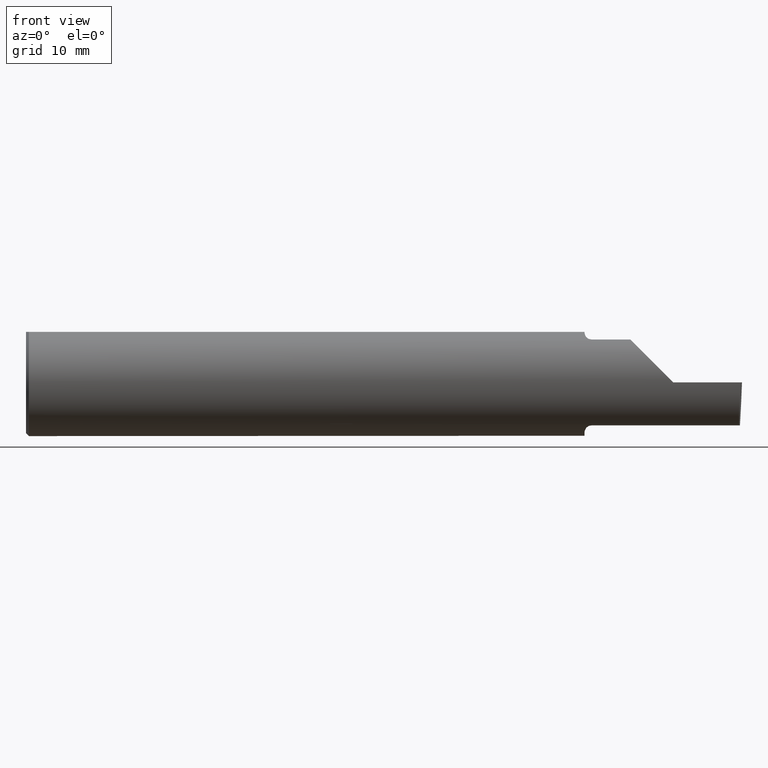
[diagram: clean part render]
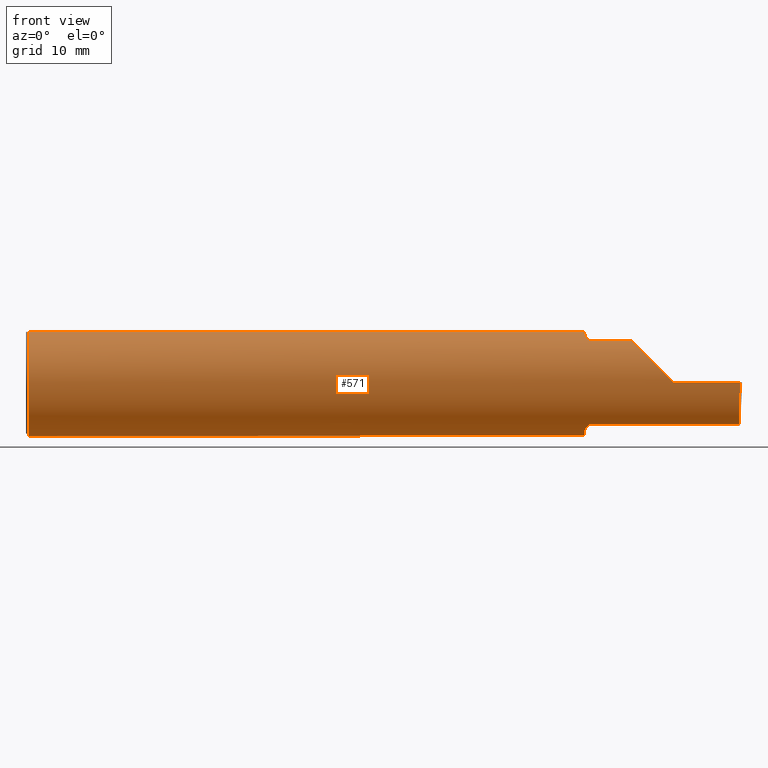
[diagram: same view with one face highlighted and labeled with its STEP entity id]
A machine part, front view. The second image highlights one B-rep face of the part: STEP entity #571.
In plain terms, the highlighted cylindrical surface (partial cylindrical patch) has radius 4.7587 mm, axis along (-1, -0, -0).
Its self-contained STEP definition (entity closure, byte-faithful):
#3 = DIRECTION ( 'NONE',  ( -1.000000000000000000, -0.000000000000000000, -0.000000000000000000 ) ) ;
#4 = AXIS2_PLACEMENT_3D ( 'NONE', #39, #424, #208 ) ;
#11 = CARTESIAN_POINT ( 'NONE',  ( 1.972161949849308593, -0.1172600179964061462, 0.1461167706989260351 ) ) ;
#12 = DIRECTION ( 'NONE',  ( 0.000000000000000000, 0.000000000000000000, 1.000000000000000000 ) ) ;
#19 = EDGE_CURVE ( 'NONE', #421, #273, #64, .T. ) ;
#20 = CARTESIAN_POINT ( 'NONE',  ( 2.150065971957465294, -0.1623470442677542591, 0.1099340280425336325 ) ) ;
#25 = CARTESIAN_POINT ( 'NONE',  ( 0.009999999999999346217, 0.06325108694718235836, 0.1763499999999999235 ) ) ;
#27 = EDGE_CURVE ( 'NONE', #528, #266, #258, .T. ) ;
#39 = CARTESIAN_POINT ( 'NONE',  ( 0.009999999999999346217, 0.000000000000000000, 0.000000000000000000 ) ) ;
#40 = EDGE_CURVE ( 'NONE', #273, #298, #674, .T. ) ;
#44 = ORIENTED_EDGE ( 'NONE', *, *, #153, .F. ) ;
#60 = CARTESIAN_POINT ( 'NONE',  ( 1.949999999999999956, -0.06325108694718283020, 0.1763499999999999235 ) ) ;
#61 = ORIENTED_EDGE ( 'NONE', *, *, #211, .F. ) ;
#64 = B_SPLINE_CURVE_WITH_KNOTS ( 'NONE', 3,
 ( #312, #257, #484, #204, #427, #489, #212, #435, #217, #645, #541, #367 ),
 .UNSPECIFIED., .F., .F.,
 ( 4, 2, 2, 2, 2, 4 ),
 ( 1.967976973726874814E-07, 0.0002120314145722337505, 0.0004238660314470947760, 0.0008475352651968044672, 0.001271204498946514050, 0.001694873732696223741 ),
 .UNSPECIFIED. ) ;
#71 = EDGE_CURVE ( 'NONE', #389, #480, #267, .T. ) ;
#75 = CIRCLE ( 'NONE', #4, 0.1873499999999999888 ) ;
#79 = CARTESIAN_POINT ( 'NONE',  ( 1.958475602106621638, -0.1064978748893404686, 0.1542035505680384444 ) ) ;
#100 = CARTESIAN_POINT ( 'NONE',  ( 3.749399456654646757E-32, -0.1873499999999999610, 3.061616997868383634E-16 ) ) ;
#102 = CARTESIAN_POINT ( 'NONE',  ( 0.000000000000000000, -0.06325108694718235836, 0.1763499999999999235 ) ) ;
#111 = ORIENTED_EDGE ( 'NONE', *, *, #303, .T. ) ;
#125 = CARTESIAN_POINT ( 'NONE',  ( 1.963163223656403389, -0.1119926267047276353, 0.1502091925606063583 ) ) ;
#128 = ORIENTED_EDGE ( 'NONE', *, *, #410, .F. ) ;
#131 = ORIENTED_EDGE ( 'NONE', *, *, #295, .F. ) ;
#153 = EDGE_CURVE ( 'NONE', #266, #511, #222, .T. ) ;
#157 = LINE ( 'NONE', #379, #647 ) ;
#172 = FACE_OUTER_BOUND ( 'NONE', #569, .T. ) ;
#182 = CARTESIAN_POINT ( 'NONE',  ( 1.969481469043492750, -0.1163560528186165927, 0.1468472430636323378 ) ) ;
#190 = CARTESIAN_POINT ( 'NONE',  ( 2.260000000000000231, -0.1873499999999999888, 2.939152317953647352E-17 ) ) ;
#197 = CARTESIAN_POINT ( 'NONE',  ( 1.949999999999999956, -0.06851976604679065053, 0.1743704796142198643 ) ) ;
#200 = CARTESIAN_POINT ( 'NONE',  ( 2.493859163031828086, -0.1873499999999999888, 0.000000000000000000 ) ) ;
#204 = CARTESIAN_POINT ( 'NONE',  ( 1.965028532764137914, -0.1137241120808233502, -0.1488947809299404901 ) ) ;
#208 = DIRECTION ( 'NONE',  ( 0.000000000000000000, 0.000000000000000000, -1.000000000000000000 ) ) ;
#211 = EDGE_CURVE ( 'NONE', #464, #421, #413, .T. ) ;
#212 = CARTESIAN_POINT ( 'NONE',  ( 1.956304331342286762, -0.1022198306720689814, -0.1570962426853819427 ) ) ;
#217 = CARTESIAN_POINT ( 'NONE',  ( 1.951843912362378308, -0.08846956905169085783, -0.1652353808078972919 ) ) ;
#219 = CARTESIAN_POINT ( 'NONE',  ( 0.009999999999999346217, 0.000000000000000000, 0.000000000000000000 ) ) ;
#222 = B_SPLINE_CURVE_WITH_KNOTS ( 'NONE', 3,
 ( #563, #574, #620, #346, #678, #274, #79, #125, #625, #182, #11, #281 ),
 .UNSPECIFIED., .F., .F.,
 ( 4, 2, 2, 2, 2, 4 ),
 ( 4.423516731080767705E-05, 0.0004615475116586697287, 0.0008788598560065317804, 0.001296172200354393832, 0.001504828372528324966, 0.001713484544702256534 ),
 .UNSPECIFIED. ) ;
#227 = DIRECTION ( 'NONE',  ( 1.000000000000000000, 0.000000000000000000, 0.000000000000000000 ) ) ;
#235 = VERTEX_POINT ( 'NONE', #25 ) ;
#237 = CARTESIAN_POINT ( 'NONE',  ( 2.217482999999999649, -0.1172600179964004702, 0.1461167706989304760 ) ) ;
#257 = CARTESIAN_POINT ( 'NONE',  ( 1.972174967710399240, -0.1172600179964005257, -0.1461167706989303927 ) ) ;
#258 = CIRCLE ( 'NONE', #525, 0.1873499999999999888 ) ;
#266 = VERTEX_POINT ( 'NONE', #197 ) ;
#267 = LINE ( 'NONE', #100, #342 ) ;
#273 = VERTEX_POINT ( 'NONE', #531 ) ;
#274 = CARTESIAN_POINT ( 'NONE',  ( 1.956287624083520083, -0.1021858045380144991, 0.1571187174372875028 ) ) ;
#281 = CARTESIAN_POINT ( 'NONE',  ( 1.974999999999999867, -0.1172600179964006506, 0.1461167706989304205 ) ) ;
#284 = VERTEX_POINT ( 'NONE', #534 ) ;
#295 = EDGE_CURVE ( 'NONE', #630, #528, #703, .T. ) ;
#298 = VERTEX_POINT ( 'NONE', #699 ) ;
#303 = EDGE_CURVE ( 'NONE', #630, #284, #75, .T. ) ;
#312 = CARTESIAN_POINT ( 'NONE',  ( 1.974999999999999867, -0.1172600179964006090, -0.1461167706989303927 ) ) ;
#321 = DIRECTION ( 'NONE',  ( 1.000000000000000000, 0.000000000000000000, 0.000000000000000000 ) ) ;
#328 = DIRECTION ( 'NONE',  ( -1.000000000000000000, -0.000000000000000000, -0.000000000000000000 ) ) ;
#331 = AXIS2_PLACEMENT_3D ( 'NONE', #219, #227, #456 ) ;
#342 = VECTOR ( 'NONE', #3, 39.37007874015748143 ) ;
#345 = CIRCLE ( 'NONE', #331, 0.1873499999999999888 ) ;
#346 = CARTESIAN_POINT ( 'NONE',  ( 1.951829077486399555, -0.08839624499054646312, 0.1652742498708037189 ) ) ;
#354 = LINE ( 'NONE', #237, #675 ) ;
#359 = ORIENTED_EDGE ( 'NONE', *, *, #19, .F. ) ;
#367 = CARTESIAN_POINT ( 'NONE',  ( 1.949999999999999956, -0.06851976604679065053, -0.1743704796142198643 ) ) ;
#369 =( BOUNDED_CURVE ( )  B_SPLINE_CURVE ( 3, ( #603, #549, #600, #200 ),
 .UNSPECIFIED., .F., .F. ) 
 B_SPLINE_CURVE_WITH_KNOTS ( ( 4, 4 ),
 ( 0.2128041086811019444, 1.107331509589550622 ),
 .UNSPECIFIED. ) 
 CURVE ( )  GEOMETRIC_REPRESENTATION_ITEM ( )  RATIONAL_B_SPLINE_CURVE ( ( 1.000000000000000000, 0.9344226172588800949, 0.9344226172588800949, 1.000000000000000000 ) ) 
 REPRESENTATION_ITEM ( '' )  );
#379 = CARTESIAN_POINT ( 'NONE',  ( 0.000000000000000000, 0.06325108694718235836, 0.1763499999999999235 ) ) ;
#380 = VERTEX_POINT ( 'NONE', #540 ) ;
#389 = VERTEX_POINT ( 'NONE', #482 ) ;
#391 = ORIENTED_EDGE ( 'NONE', *, *, #705, .F. ) ;
#397 =( BOUNDED_CURVE ( )  B_SPLINE_CURVE ( 3, ( #190, #476, #20, #638 ),
 .UNSPECIFIED., .F., .F. ) 
 B_SPLINE_CURVE_WITH_KNOTS ( ( 4, 4 ),
 ( 4.712388980384688786, 5.606916381293135743 ),
 .UNSPECIFIED. ) 
 CURVE ( )  GEOMETRIC_REPRESENTATION_ITEM ( )  RATIONAL_B_SPLINE_CURVE ( ( 1.000000000000000000, 0.9344226172588803170, 0.9344226172588803170, 1.000000000000000000 ) ) 
 REPRESENTATION_ITEM ( '' )  );
#402 = CARTESIAN_POINT ( 'NONE',  ( 1.974999999999999867, -0.1172600179964006506, 0.1461167706989304205 ) ) ;
#410 = EDGE_CURVE ( 'NONE', #298, #235, #157, .T. ) ;
#413 = LINE ( 'NONE', #470, #687 ) ;
#418 = ORIENTED_EDGE ( 'NONE', *, *, #71, .T. ) ;
#421 = VERTEX_POINT ( 'NONE', #698 ) ;
#422 = EDGE_CURVE ( 'NONE', #464, #389, #369, .T. ) ;
#424 = DIRECTION ( 'NONE',  ( 1.000000000000000000, 0.000000000000000000, 0.000000000000000000 ) ) ;
#426 = AXIS2_PLACEMENT_3D ( 'NONE', #597, #551, #652 ) ;
#427 = CARTESIAN_POINT ( 'NONE',  ( 1.963203859946833330, -0.1120371980050637456, -0.1501764597936560142 ) ) ;
#435 = CARTESIAN_POINT ( 'NONE',  ( 1.952960551809340917, -0.09317341542745735672, -0.1626248379125197208 ) ) ;
#449 = ORIENTED_EDGE ( 'NONE', *, *, #422, .T. ) ;
#456 = DIRECTION ( 'NONE',  ( 0.000000000000000000, 0.000000000000000000, -1.000000000000000000 ) ) ;
#464 = VERTEX_POINT ( 'NONE', #553 ) ;
#470 = CARTESIAN_POINT ( 'NONE',  ( 2.217482999999999649, -0.1172600179964004702, -0.1461167706989304760 ) ) ;
#476 = CARTESIAN_POINT ( 'NONE',  ( 2.202189699843948745, -0.1873500000000000443, 0.05781030015605096578 ) ) ;
#480 = VERTEX_POINT ( 'NONE', #618 ) ;
#482 = CARTESIAN_POINT ( 'NONE',  ( 2.493859163031828086, -0.1873499999999999888, 0.000000000000000000 ) ) ;
#484 = CARTESIAN_POINT ( 'NONE',  ( 1.969511795768554174, -0.1163687266324233693, -0.1468371510166789906 ) ) ;
#489 = CARTESIAN_POINT ( 'NONE',  ( 1.958439486659306894, -0.1064616213911157433, -0.1542305641651501580 ) ) ;
#499 = ORIENTED_EDGE ( 'NONE', *, *, #27, .F. ) ;
#506 = CYLINDRICAL_SURFACE ( 'NONE', #661, 0.1873499999999999888 ) ;
#507 = ORIENTED_EDGE ( 'NONE', *, *, #40, .F. ) ;
#511 = VERTEX_POINT ( 'NONE', #402 ) ;
#525 = AXIS2_PLACEMENT_3D ( 'NONE', #649, #547, #657 ) ;
#528 = VERTEX_POINT ( 'NONE', #60 ) ;
#531 = CARTESIAN_POINT ( 'NONE',  ( 1.949999999999999956, -0.06851976604679065053, -0.1743704796142198643 ) ) ;
#534 = CARTESIAN_POINT ( 'NONE',  ( 0.009999999999999346217, 0.000000000000000000, -0.1873499999999999888 ) ) ;
#540 = CARTESIAN_POINT ( 'NONE',  ( 2.113883229301068312, -0.1172600179964008033, 0.1461167706989302539 ) ) ;
#541 = CARTESIAN_POINT ( 'NONE',  ( 1.949999999999999067, -0.07368234487347193051, -0.1723418180300748115 ) ) ;
#547 = DIRECTION ( 'NONE',  ( 1.000000000000000000, -2.008845683092791531E-16, 0.000000000000000000 ) ) ;
#549 = CARTESIAN_POINT ( 'NONE',  ( 2.490456025610515045, -0.1623470442677540371, -0.1099340280425339517 ) ) ;
#551 = DIRECTION ( 'NONE',  ( 1.000000000000000000, -2.008845683092791531E-16, 0.000000000000000000 ) ) ;
#553 = CARTESIAN_POINT ( 'NONE',  ( 2.489979300894684666, -0.1172600179964005257, -0.1461167706989304760 ) ) ;
#563 = CARTESIAN_POINT ( 'NONE',  ( 1.949999999999999956, -0.06851976604679065053, 0.1743704796142198643 ) ) ;
#569 = EDGE_LOOP ( 'NONE', ( #61, #449, #418, #613, #391, #44, #499, #131, #111, #588, #128, #507, #359 ) ) ;
#571 = ADVANCED_FACE ( 'NONE', ( #172 ), #506, .T. ) ;
#574 = CARTESIAN_POINT ( 'NONE',  ( 1.949999999999999512, -0.07367581953296702124, 0.1723443821957854061 ) ) ;
#585 = EDGE_CURVE ( 'NONE', #284, #235, #345, .T. ) ;
#588 = ORIENTED_EDGE ( 'NONE', *, *, #585, .T. ) ;
#597 = CARTESIAN_POINT ( 'NONE',  ( 1.949999999999999956, 0.000000000000000000, 0.000000000000000000 ) ) ;
#600 = CARTESIAN_POINT ( 'NONE',  ( 2.491840075348995764, -0.1873500000000000165, -0.05781030015605122946 ) ) ;
#603 = CARTESIAN_POINT ( 'NONE',  ( 2.489979300894684666, -0.1172600179964005257, -0.1461167706989304760 ) ) ;
#607 = EDGE_CURVE ( 'NONE', #480, #380, #397, .T. ) ;
#613 = ORIENTED_EDGE ( 'NONE', *, *, #607, .T. ) ;
#618 = CARTESIAN_POINT ( 'NONE',  ( 2.260000000000000231, -0.1873499999999999888, 2.939152317953647352E-17 ) ) ;
#620 = CARTESIAN_POINT ( 'NONE',  ( 1.950353553376444671, -0.07868116735658677030, 0.1701139256562800572 ) ) ;
#625 = CARTESIAN_POINT ( 'NONE',  ( 1.965004157323697376, -0.1137044537483316298, 0.1489098419202428414 ) ) ;
#626 = VECTOR ( 'NONE', #321, 39.37007874015748143 ) ;
#629 = DIRECTION ( 'NONE',  ( 1.000000000000000000, -2.008845683092791284E-16, 0.000000000000000000 ) ) ;
#630 = VERTEX_POINT ( 'NONE', #695 ) ;
#638 = CARTESIAN_POINT ( 'NONE',  ( 2.113883229301068312, -0.1172600179964008033, 0.1461167706989302539 ) ) ;
#644 = DIRECTION ( 'NONE',  ( -1.000000000000000000, -0.000000000000000000, -0.000000000000000000 ) ) ;
#645 = CARTESIAN_POINT ( 'NONE',  ( 1.950358271039143165, -0.07873626113568076013, -0.1700887912276895508 ) ) ;
#647 = VECTOR ( 'NONE', #644, 39.37007874015748143 ) ;
#649 = CARTESIAN_POINT ( 'NONE',  ( 1.949999999999999956, 0.000000000000000000, 0.000000000000000000 ) ) ;
#652 = DIRECTION ( 'NONE',  ( 0.000000000000000000, 1.000000000000000000, 0.000000000000000000 ) ) ;
#657 = DIRECTION ( 'NONE',  ( 0.000000000000000000, 1.000000000000000000, 0.000000000000000000 ) ) ;
#661 = AXIS2_PLACEMENT_3D ( 'NONE', #663, #328, #12 ) ;
#663 = CARTESIAN_POINT ( 'NONE',  ( 0.000000000000000000, 0.000000000000000000, 0.000000000000000000 ) ) ;
#674 = CIRCLE ( 'NONE', #426, 0.1873499999999999888 ) ;
#675 = VECTOR ( 'NONE', #629, 39.37007874015748143 ) ;
#678 = CARTESIAN_POINT ( 'NONE',  ( 1.952945243422982369, -0.09312071749437417223, 0.1626553472577905446 ) ) ;
#687 = VECTOR ( 'NONE', #690, 39.37007874015748143 ) ;
#690 = DIRECTION ( 'NONE',  ( -1.000000000000000000, 2.008845683092791284E-16, -0.000000000000000000 ) ) ;
#695 = CARTESIAN_POINT ( 'NONE',  ( 0.009999999999999346217, -0.06325108694718235836, 0.1763499999999999235 ) ) ;
#698 = CARTESIAN_POINT ( 'NONE',  ( 1.974999999999999867, -0.1172600179964006090, -0.1461167706989303927 ) ) ;
#699 = CARTESIAN_POINT ( 'NONE',  ( 1.949999999999999956, 0.06325108694718235836, 0.1763499999999999235 ) ) ;
#703 = LINE ( 'NONE', #102, #626 ) ;
#705 = EDGE_CURVE ( 'NONE', #511, #380, #354, .T. ) ;